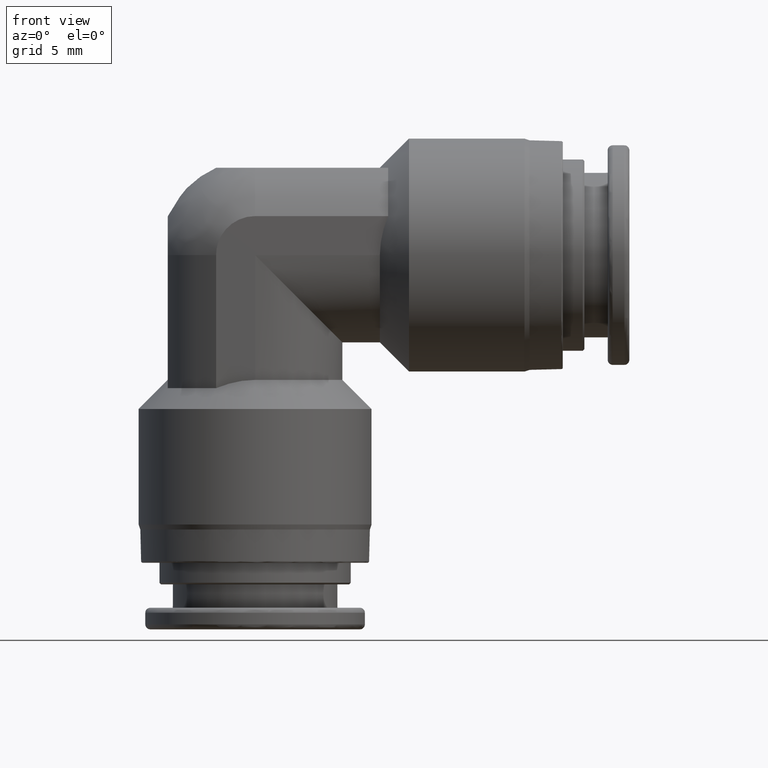
[diagram: clean part render]
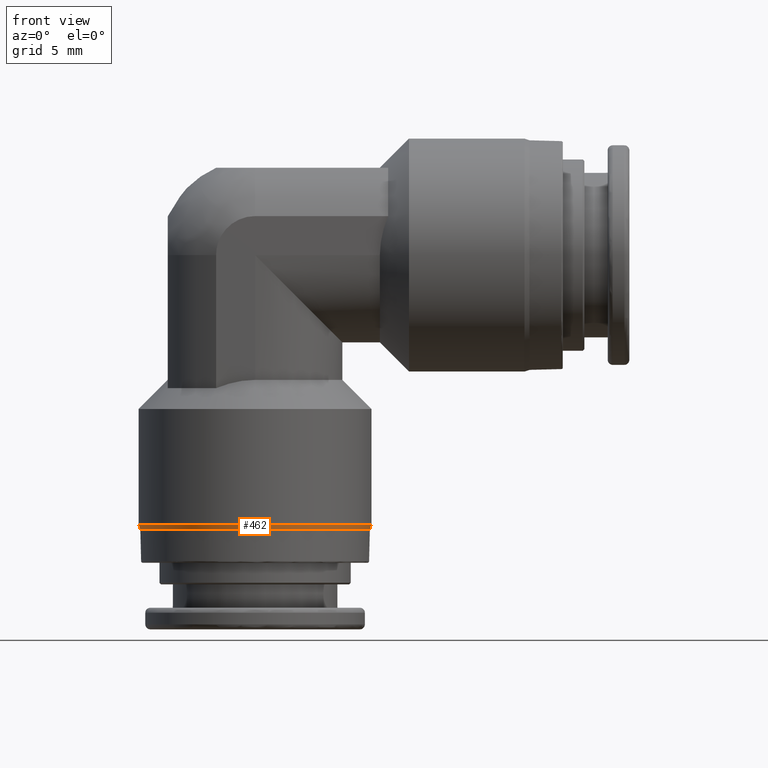
[diagram: same view with one face highlighted and labeled with its STEP entity id]
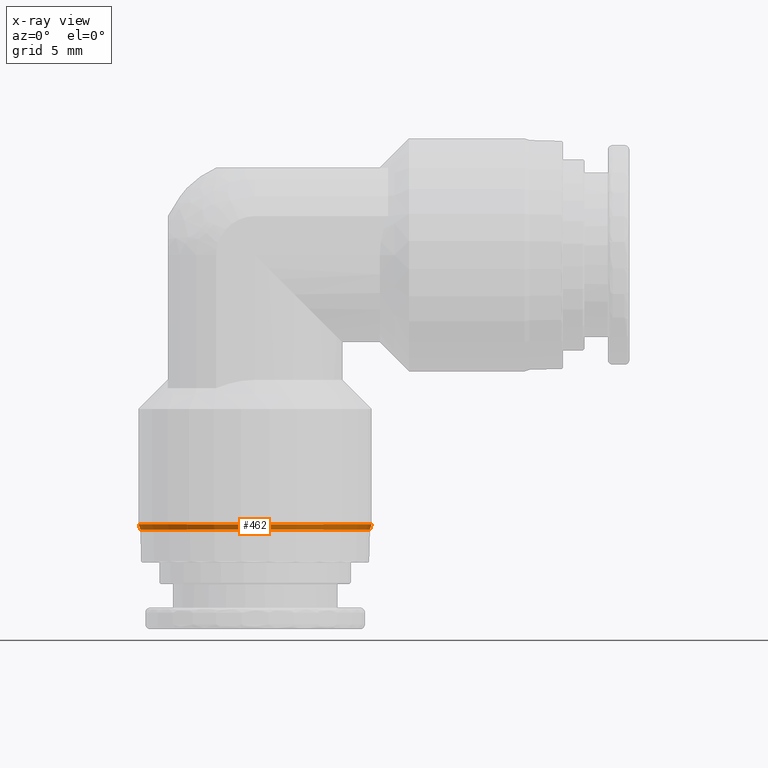
[diagram: x-ray of the same camera — body ghosted, the highlighted face saturated]
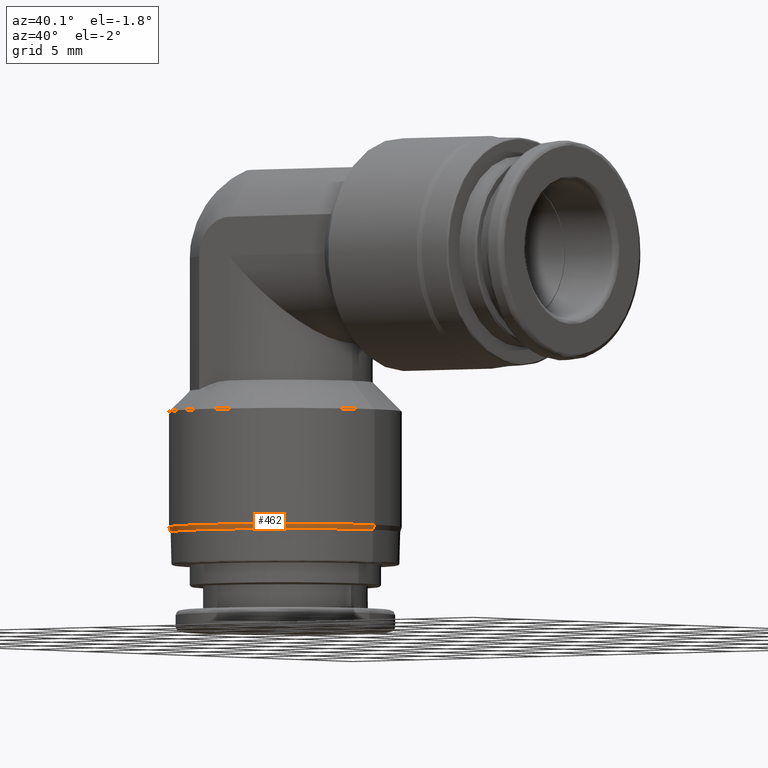
[diagram: same view with one face highlighted and labeled with its STEP entity id]
A machine part, front view. The second image highlights one B-rep face of the part: STEP entity #462.
The next image is the same camera in x-ray: the body ghosted, the highlighted face saturated — about 0% of this face is hidden behind the body in this view.
A second angle (auxiliary view) of the same face is appended — the face is thin or edge-on in the first view.
In plain terms, the highlighted conical surface has half-angle 18.435 deg.
Its self-contained STEP definition (entity closure, byte-faithful):
#16 = DIRECTION ( 'NONE',  ( 1.171453342316279900E-015, 0.0000000000000000000, 1.000000000000000000 ) ) ;
#81 = ORIENTED_EDGE ( 'NONE', *, *, #1824, .T. ) ;
#110 = VERTEX_POINT ( 'NONE', #2814 ) ;
#316 = EDGE_CURVE ( 'NONE', #1556, #1205, #733, .T. ) ;
#426 = CARTESIAN_POINT ( 'NONE',  ( -0.2755905511811030400, 3.375010863791917100E-017, -0.6377952755905511600 ) ) ;
#462 = ADVANCED_FACE ( 'NONE', ( #1217 ), #1961, .T. ) ;
#520 = CIRCLE ( 'NONE', #532, 0.2755905511811023700 ) ;
#532 = AXIS2_PLACEMENT_3D ( 'NONE', #1674, #16, #1970 ) ;
#657 = VECTOR ( 'NONE', #988, 39.37007874015748900 ) ;
#733 = LINE ( 'NONE', #2368, #1832 ) ;
#884 = CARTESIAN_POINT ( 'NONE',  ( -7.512581982576725300E-016, 0.0000000000000000000, -0.6377952755905514900 ) ) ;
#887 = EDGE_CURVE ( 'NONE', #1073, #1205, #520, .T. ) ;
#988 = DIRECTION ( 'NONE',  ( -0.3162277656680455600, 3.872673210268926800E-017, 0.9486832981667778800 ) ) ;
#1073 = VERTEX_POINT ( 'NONE', #3137 ) ;
#1205 = VERTEX_POINT ( 'NONE', #2922 ) ;
#1217 = FACE_OUTER_BOUND ( 'NONE', #1397, .T. ) ;
#1361 = CIRCLE ( 'NONE', #2191, 0.2716535433114289400 ) ;
#1397 = EDGE_LOOP ( 'NONE', ( #1560, #81, #2226, #2471 ) ) ;
#1402 = DIRECTION ( 'NONE',  ( -1.000000000000000000, 0.0000000000000000000, 1.005636797651639500E-015 ) ) ;
#1551 = AXIS2_PLACEMENT_3D ( 'NONE', #884, #3144, #1725 ) ;
#1556 = VERTEX_POINT ( 'NONE', #1926 ) ;
#1560 = ORIENTED_EDGE ( 'NONE', *, *, #1714, .F. ) ;
#1645 = CARTESIAN_POINT ( 'NONE',  ( -7.609834704039984100E-016, 0.0000000000000000000, -0.6496062992140462200 ) ) ;
#1674 = CARTESIAN_POINT ( 'NONE',  ( -7.471474073040839200E-016, 0.0000000000000000000, -0.6377952755905514900 ) ) ;
#1714 = EDGE_CURVE ( 'NONE', #110, #1073, #3568, .T. ) ;
#1725 = DIRECTION ( 'NONE',  ( 1.000000000000000000, 0.0000000000000000000, -9.912705577010330500E-016 ) ) ;
#1824 = EDGE_CURVE ( 'NONE', #110, #1556, #1361, .T. ) ;
#1832 = VECTOR ( 'NONE', #3483, 39.37007874015748100 ) ;
#1926 = CARTESIAN_POINT ( 'NONE',  ( 0.2716535433070249000, 0.0000000000000000000, -0.6496062992140464500 ) ) ;
#1961 = CONICAL_SURFACE ( 'NONE', #1551, 0.2755905511811022600, 0.3217505540289839500 ) ;
#1970 = DIRECTION ( 'NONE',  ( 1.000000000000000000, 0.0000000000000000000, -9.912705577010326500E-016 ) ) ;
#2191 = AXIS2_PLACEMENT_3D ( 'NONE', #1645, #2806, #1402 ) ;
#2226 = ORIENTED_EDGE ( 'NONE', *, *, #316, .T. ) ;
#2368 = CARTESIAN_POINT ( 'NONE',  ( 0.2755905511811015400, 0.0000000000000000000, -0.6377952755905517100 ) ) ;
#2471 = ORIENTED_EDGE ( 'NONE', *, *, #887, .F. ) ;
#2806 = DIRECTION ( 'NONE',  ( 1.171453342316279900E-015, 0.0000000000000000000, 1.000000000000000000 ) ) ;
#2814 = CARTESIAN_POINT ( 'NONE',  ( -0.2716535433070264000, 3.326796422879857700E-017, -0.6496062992140458900 ) ) ;
#2922 = CARTESIAN_POINT ( 'NONE',  ( 0.2755905511811015400, 0.0000000000000000000, -0.6377952755905517100 ) ) ;
#3137 = CARTESIAN_POINT ( 'NONE',  ( -0.2755905511811030400, 3.375010863791917800E-017, -0.6377952755905511600 ) ) ;
#3144 = DIRECTION ( 'NONE',  ( 1.239088197126291300E-015, 0.0000000000000000000, 1.000000000000000000 ) ) ;
#3483 = DIRECTION ( 'NONE',  ( 0.3162277656680479400, 0.0000000000000000000, 0.9486832981667771000 ) ) ;
#3568 = LINE ( 'NONE', #426, #657 ) ;